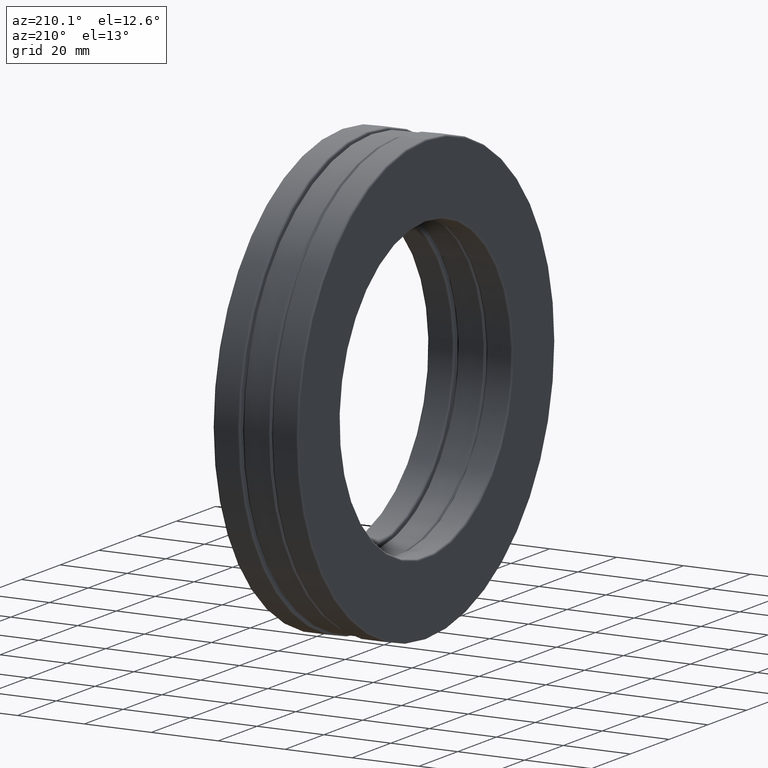
[diagram: clean part render]
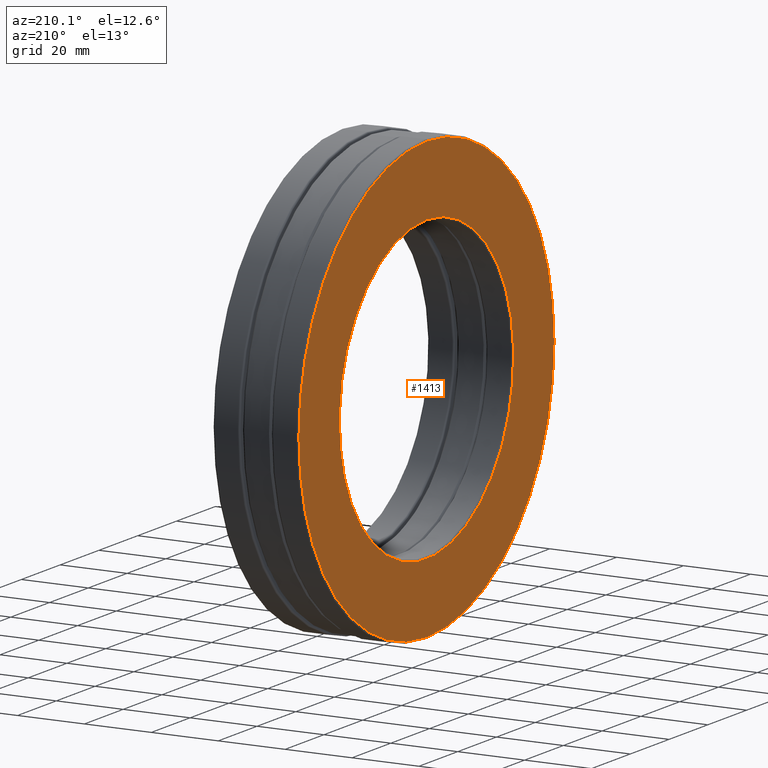
[diagram: same view with one face highlighted and labeled with its STEP entity id]
A machine part, auxiliary view. The second image highlights one B-rep face of the part: STEP entity #1413.
In plain terms, the highlighted planar face has unit normal (1, 0, 0).
Its self-contained STEP definition (entity closure, byte-faithful):
#12 = DIRECTION ( 'NONE',  ( -1.000000000000000000, -0.0000000000000000000, -0.0000000000000000000 ) ) ;
#94 = DIRECTION ( 'NONE',  ( 1.000000000000000000, 0.0000000000000000000, 0.0000000000000000000 ) ) ;
#104 = CIRCLE ( 'NONE', #443, 2.589375000000000000 ) ;
#119 = FACE_BOUND ( 'NONE', #732, .T. ) ;
#127 = EDGE_LOOP ( 'NONE', ( #393 ) ) ;
#196 = CARTESIAN_POINT ( 'NONE',  ( -0.5000000000000001100, 0.0000000000000000000, 0.0000000000000000000 ) ) ;
#329 = DIRECTION ( 'NONE',  ( 0.0000000000000000000, 0.0000000000000000000, -1.000000000000000000 ) ) ;
#343 = VERTEX_POINT ( 'NONE', #1331 ) ;
#393 = ORIENTED_EDGE ( 'NONE', *, *, #968, .T. ) ;
#443 = AXIS2_PLACEMENT_3D ( 'NONE', #480, #12, #1060 ) ;
#480 = CARTESIAN_POINT ( 'NONE',  ( -0.5000000000000001100, 0.0000000000000000000, 0.0000000000000000000 ) ) ;
#539 = DIRECTION ( 'NONE',  ( -1.000000000000000000, -0.0000000000000000000, -0.0000000000000000000 ) ) ;
#642 = CARTESIAN_POINT ( 'NONE',  ( -0.5000000000000001100, 0.0000000000000000000, 0.0000000000000000000 ) ) ;
#678 = VERTEX_POINT ( 'NONE', #710 ) ;
#709 = EDGE_CURVE ( 'NONE', #343, #343, #838, .T. ) ;
#710 = CARTESIAN_POINT ( 'NONE',  ( -0.5000000000000001100, 0.0000000000000000000, 2.589375000000000000 ) ) ;
#732 = EDGE_LOOP ( 'NONE', ( #1398 ) ) ;
#838 = CIRCLE ( 'NONE', #887, 1.770000000000000000 ) ;
#887 = AXIS2_PLACEMENT_3D ( 'NONE', #642, #539, #1242 ) ;
#968 = EDGE_CURVE ( 'NONE', #678, #678, #104, .T. ) ;
#986 = FACE_OUTER_BOUND ( 'NONE', #127, .T. ) ;
#1060 = DIRECTION ( 'NONE',  ( 0.0000000000000000000, 0.0000000000000000000, 1.000000000000000000 ) ) ;
#1242 = DIRECTION ( 'NONE',  ( 0.0000000000000000000, 0.0000000000000000000, 1.000000000000000000 ) ) ;
#1300 = AXIS2_PLACEMENT_3D ( 'NONE', #196, #94, #329 ) ;
#1331 = CARTESIAN_POINT ( 'NONE',  ( -0.5000000000000001100, 0.0000000000000000000, 1.770000000000000000 ) ) ;
#1398 = ORIENTED_EDGE ( 'NONE', *, *, #709, .F. ) ;
#1413 = ADVANCED_FACE ( 'NONE', ( #119, #986 ), #1448, .F. ) ;
#1448 = PLANE ( 'NONE',  #1300 ) ;